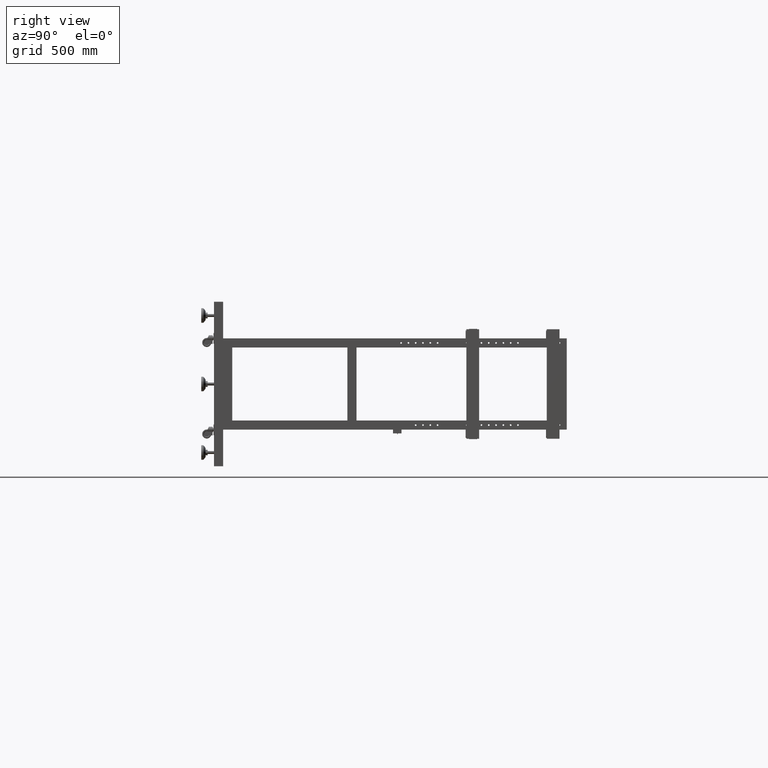
[diagram: clean part render]
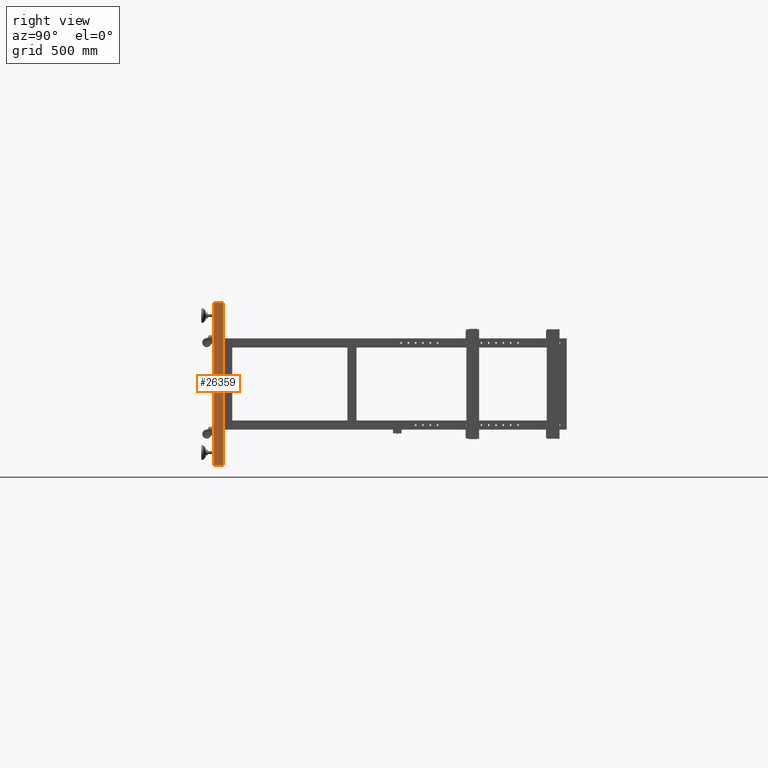
[diagram: same view with one face highlighted and labeled with its STEP entity id]
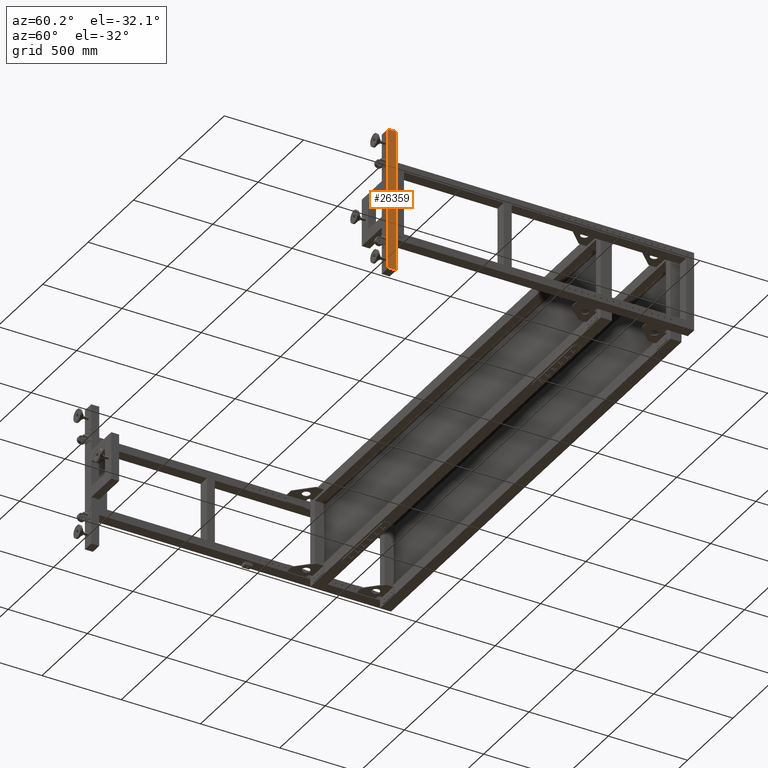
[diagram: same view with one face highlighted and labeled with its STEP entity id]
A machine part, right view. The second image highlights one B-rep face of the part: STEP entity #26359.
A second angle (auxiliary view) of the same face is appended — the face is thin or edge-on in the first view.
In plain terms, the highlighted planar face has unit normal (1, -0, 0).
Its self-contained STEP definition (entity closure, byte-faithful):
#299 = ORIENTED_EDGE ( 'NONE', *, *, #74377, .T. ) ;
#740 = ORIENTED_EDGE ( 'NONE', *, *, #48223, .T. ) ;
#1240 = ORIENTED_EDGE ( 'NONE', *, *, #39669, .F. ) ;
#6351 = DIRECTION ( 'NONE',  ( -1.007857950571557086E-16, -1.000000000000000000, 0.000000000000000000 ) ) ;
#6705 = VERTEX_POINT ( 'NONE', #74836 ) ;
#8347 = CARTESIAN_POINT ( 'NONE',  ( 2001.827512562814491, -894.5589195979868009, -448.0000000000000568 ) ) ;
#8350 = CARTESIAN_POINT ( 'NONE',  ( 2001.827512562814491, -894.5589195979868009, 447.9999999999999432 ) ) ;
#8558 = CARTESIAN_POINT ( 'NONE',  ( 2001.827512562814491, -894.5589195979868009, -448.0000000000000568 ) ) ;
#9261 = VERTEX_POINT ( 'NONE', #8350 ) ;
#10736 = LINE ( 'NONE', #79527, #30017 ) ;
#14653 = EDGE_LOOP ( 'NONE', ( #299, #41688, #1240, #740 ) ) ;
#24281 = VERTEX_POINT ( 'NONE', #78518 ) ;
#26359 = ADVANCED_FACE ( 'NONE', ( #33409 ), #33809, .T. ) ;
#30017 = VECTOR ( 'NONE', #73366, 1000.000000000000000 ) ;
#32473 = LINE ( 'NONE', #8347, #60794 ) ;
#33409 = FACE_OUTER_BOUND ( 'NONE', #14653, .T. ) ;
#33809 = PLANE ( 'NONE',  #64506 ) ;
#35091 = DIRECTION ( 'NONE',  ( 0.000000000000000000, 0.000000000000000000, 1.000000000000000000 ) ) ;
#38190 = VECTOR ( 'NONE', #35091, 1000.000000000000000 ) ;
#39669 = EDGE_CURVE ( 'NONE', #6705, #24281, #32473, .T. ) ;
#41688 = ORIENTED_EDGE ( 'NONE', *, *, #50069, .F. ) ;
#43565 = LINE ( 'NONE', #68556, #50328 ) ;
#47384 = LINE ( 'NONE', #8558, #38190 ) ;
#48223 = EDGE_CURVE ( 'NONE', #6705, #50944, #10736, .T. ) ;
#50069 = EDGE_CURVE ( 'NONE', #24281, #9261, #47384, .T. ) ;
#50328 = VECTOR ( 'NONE', #6351, 1000.000000000000000 ) ;
#50944 = VERTEX_POINT ( 'NONE', #59910 ) ;
#59910 = CARTESIAN_POINT ( 'NONE',  ( 2001.827512562814491, -844.5589195979868009, 447.9999999999999432 ) ) ;
#60794 = VECTOR ( 'NONE', #64024, 1000.000000000000000 ) ;
#64024 = DIRECTION ( 'NONE',  ( -1.007857950571557086E-16, -1.000000000000000000, 0.000000000000000000 ) ) ;
#64506 = AXIS2_PLACEMENT_3D ( 'NONE', #64970, #77656, #65358 ) ;
#64970 = CARTESIAN_POINT ( 'NONE',  ( 2001.827512562814491, -894.5589195979868009, -448.0000000000000568 ) ) ;
#65358 = DIRECTION ( 'NONE',  ( 1.007857950571557086E-16, 1.000000000000000000, 0.000000000000000000 ) ) ;
#68556 = CARTESIAN_POINT ( 'NONE',  ( 2001.827512562814491, -894.5589195979868009, 447.9999999999999432 ) ) ;
#73366 = DIRECTION ( 'NONE',  ( 0.000000000000000000, 0.000000000000000000, 1.000000000000000000 ) ) ;
#74377 = EDGE_CURVE ( 'NONE', #50944, #9261, #43565, .T. ) ;
#74836 = CARTESIAN_POINT ( 'NONE',  ( 2001.827512562814491, -844.5589195979868009, -448.0000000000000568 ) ) ;
#77656 = DIRECTION ( 'NONE',  ( 1.000000000000000000, -1.007857950571557086E-16, 0.000000000000000000 ) ) ;
#78518 = CARTESIAN_POINT ( 'NONE',  ( 2001.827512562814491, -894.5589195979868009, -448.0000000000000568 ) ) ;
#79527 = CARTESIAN_POINT ( 'NONE',  ( 2001.827512562814491, -844.5589195979868009, -448.0000000000000568 ) ) ;